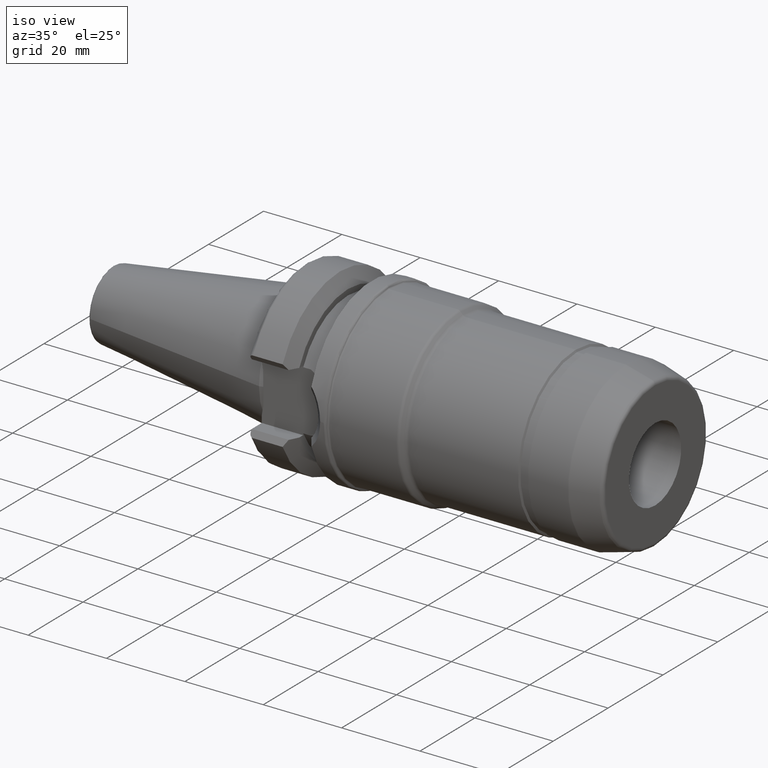
[diagram: clean part render]
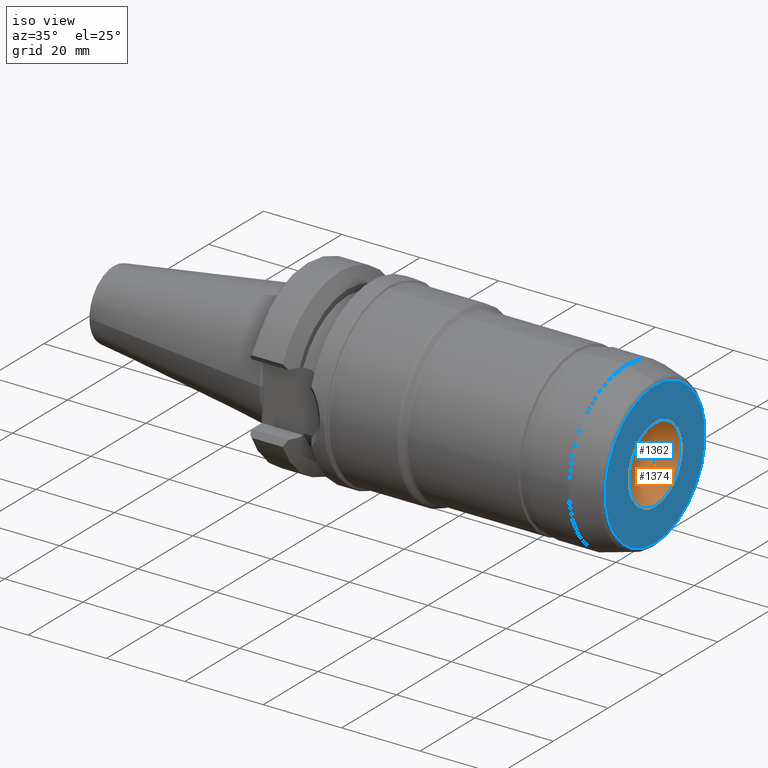
[diagram: same view with the hole feature highlighted: cylindrical wall and planar end face, labeled with their STEP entity ids]
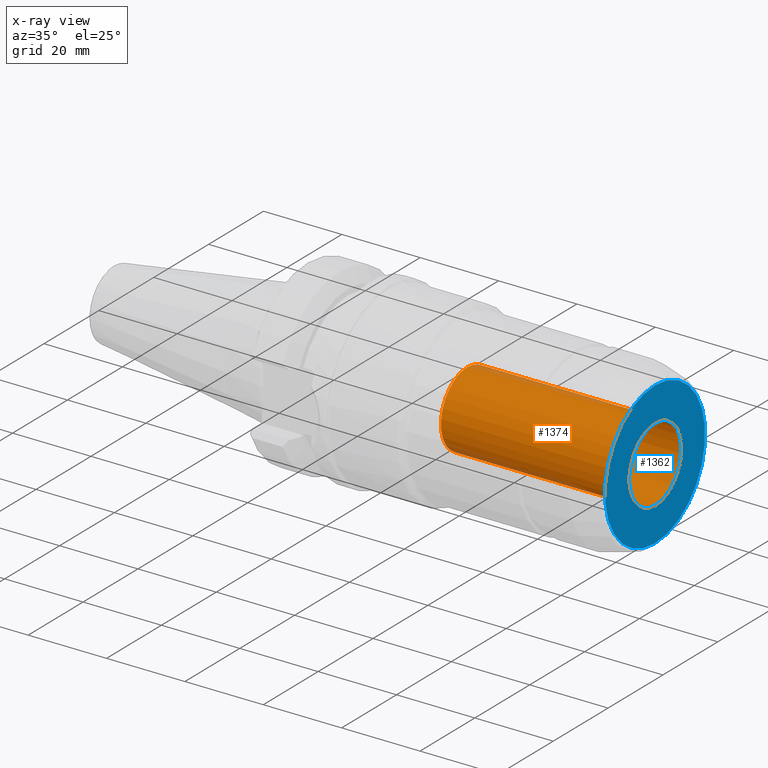
[diagram: x-ray of the same camera — body ghosted, the hole faces saturated]
A machine part, iso view. The highlighted faces form one hole feature of diameter 19.05 mm: the cylindrical wall (entity #1374, orange) and its adjacent planar end face (entity #1362, blue) — they share a circular edge in the B-rep.
The next image is the same camera in x-ray (body ghosted, the hole faces saturated) — the bore reads through the body.
Wall:
#129=FACE_OUTER_BOUND('',#206,.T.);
#206=EDGE_LOOP('',(#997,#998,#999,#1000,#1001,#1002));
#281=LINE('',#2200,#351);
#351=VECTOR('',#1779,9.525);
#425=CIRCLE('',#1476,9.525);
#426=CIRCLE('',#1477,9.525);
#451=CIRCLE('',#1514,9.525);
#452=CIRCLE('',#1515,9.525);
#537=VERTEX_POINT('',#2132);
#538=VERTEX_POINT('',#2133);
#559=VERTEX_POINT('',#2199);
#560=VERTEX_POINT('',#2201);
#694=EDGE_CURVE('',#537,#538,#425,.T.);
#695=EDGE_CURVE('',#538,#537,#426,.T.);
#727=EDGE_CURVE('',#538,#559,#281,.T.);
#728=EDGE_CURVE('',#560,#559,#451,.T.);
#729=EDGE_CURVE('',#559,#560,#452,.T.);
#997=ORIENTED_EDGE('',*,*,#694,.T.);
#998=ORIENTED_EDGE('',*,*,#727,.T.);
#999=ORIENTED_EDGE('',*,*,#728,.F.);
#1000=ORIENTED_EDGE('',*,*,#729,.F.);
#1001=ORIENTED_EDGE('',*,*,#727,.F.);
#1002=ORIENTED_EDGE('',*,*,#695,.T.);
#1338=CYLINDRICAL_SURFACE('',#1513,9.525);
#1374=ADVANCED_FACE('',(#129),#1338,.F.);
#1476=AXIS2_PLACEMENT_3D('',#2134,#1696,#1697);
#1477=AXIS2_PLACEMENT_3D('',#2135,#1698,#1699);
#1513=AXIS2_PLACEMENT_3D('',#2198,#1777,#1778);
#1514=AXIS2_PLACEMENT_3D('',#2202,#1780,#1781);
#1515=AXIS2_PLACEMENT_3D('',#2203,#1782,#1783);
#1696=DIRECTION('center_axis',(1.,0.,0.));
#1697=DIRECTION('ref_axis',(0.,0.,-1.));
#1698=DIRECTION('center_axis',(1.,0.,0.));
#1699=DIRECTION('ref_axis',(0.,0.,-1.));
#1777=DIRECTION('center_axis',(1.,0.,0.));
#1778=DIRECTION('ref_axis',(0.,0.,-1.));
#1779=DIRECTION('',(-1.,0.,0.));
#1780=DIRECTION('center_axis',(1.,0.,0.));
#1781=DIRECTION('ref_axis',(0.,0.,-1.));
#1782=DIRECTION('center_axis',(1.,0.,0.));
#1783=DIRECTION('ref_axis',(0.,0.,-1.));
#2132=CARTESIAN_POINT('',(90.,0.,-9.525));
#2133=CARTESIAN_POINT('',(90.,-1.16647607618785E-15,9.525));
#2134=CARTESIAN_POINT('Origin',(90.,0.,0.));
#2135=CARTESIAN_POINT('Origin',(90.,0.,0.));
#2198=CARTESIAN_POINT('Origin',(66.,0.,0.));
#2199=CARTESIAN_POINT('',(42.,-1.16647607618785E-15,9.525));
#2200=CARTESIAN_POINT('',(66.,-1.16647607618785E-15,9.525));
#2201=CARTESIAN_POINT('',(42.,0.,-9.525));
#2202=CARTESIAN_POINT('Origin',(42.,0.,0.));
#2203=CARTESIAN_POINT('Origin',(42.,0.,0.));
End face:
#54=FACE_BOUND('',#194,.T.);
#60=PLANE('',#1475);
#117=FACE_OUTER_BOUND('',#193,.T.);
#193=EDGE_LOOP('',(#930,#931));
#194=EDGE_LOOP('',(#932,#933));
#418=CIRCLE('',#1467,18.232673012021);
#422=CIRCLE('',#1471,18.232673012021);
#425=CIRCLE('',#1476,9.525);
#426=CIRCLE('',#1477,9.525);
#531=VERTEX_POINT('',#2116);
#532=VERTEX_POINT('',#2117);
#537=VERTEX_POINT('',#2132);
#538=VERTEX_POINT('',#2133);
#686=EDGE_CURVE('',#531,#532,#418,.T.);
#690=EDGE_CURVE('',#532,#531,#422,.T.);
#694=EDGE_CURVE('',#537,#538,#425,.T.);
#695=EDGE_CURVE('',#538,#537,#426,.T.);
#930=ORIENTED_EDGE('',*,*,#686,.F.);
#931=ORIENTED_EDGE('',*,*,#690,.F.);
#932=ORIENTED_EDGE('',*,*,#694,.F.);
#933=ORIENTED_EDGE('',*,*,#695,.F.);
#1362=ADVANCED_FACE('',(#117,#54),#60,.T.);
#1467=AXIS2_PLACEMENT_3D('',#2118,#1677,#1678);
#1471=AXIS2_PLACEMENT_3D('',#2124,#1685,#1686);
#1475=AXIS2_PLACEMENT_3D('',#2131,#1694,#1695);
#1476=AXIS2_PLACEMENT_3D('',#2134,#1696,#1697);
#1477=AXIS2_PLACEMENT_3D('',#2135,#1698,#1699);
#1677=DIRECTION('center_axis',(-1.,0.,0.));
#1678=DIRECTION('ref_axis',(0.,1.22464679914735E-16,1.));
#1685=DIRECTION('center_axis',(-1.,0.,0.));
#1686=DIRECTION('ref_axis',(0.,1.22464679914735E-16,1.));
#1694=DIRECTION('center_axis',(1.,0.,0.));
#1695=DIRECTION('ref_axis',(0.,0.,-1.));
#1696=DIRECTION('center_axis',(1.,0.,0.));
#1697=DIRECTION('ref_axis',(0.,0.,-1.));
#1698=DIRECTION('center_axis',(1.,0.,0.));
#1699=DIRECTION('ref_axis',(0.,0.,-1.));
#2116=CARTESIAN_POINT('',(90.,-4.46571692881438E-15,-18.232673012021));
#2117=CARTESIAN_POINT('',(90.,-2.23285846440719E-15,18.232673012021));
#2118=CARTESIAN_POINT('Origin',(90.,0.,0.));
#2124=CARTESIAN_POINT('Origin',(90.,0.,0.));
#2131=CARTESIAN_POINT('Origin',(90.,0.,-9.525));
#2132=CARTESIAN_POINT('',(90.,0.,-9.525));
#2133=CARTESIAN_POINT('',(90.,-1.16647607618785E-15,9.525));
#2134=CARTESIAN_POINT('Origin',(90.,0.,0.));
#2135=CARTESIAN_POINT('Origin',(90.,0.,0.));